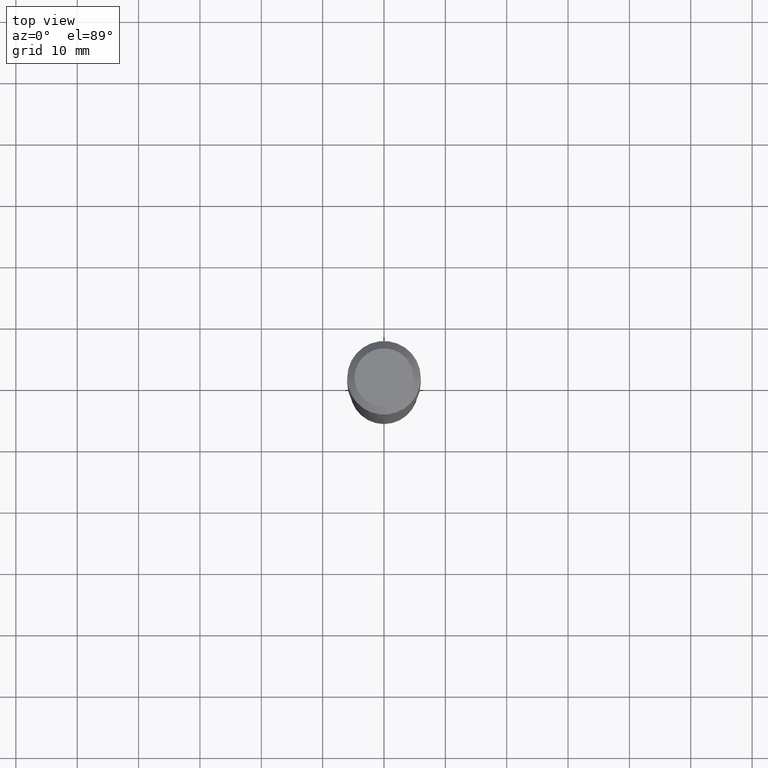
[diagram: clean part render]
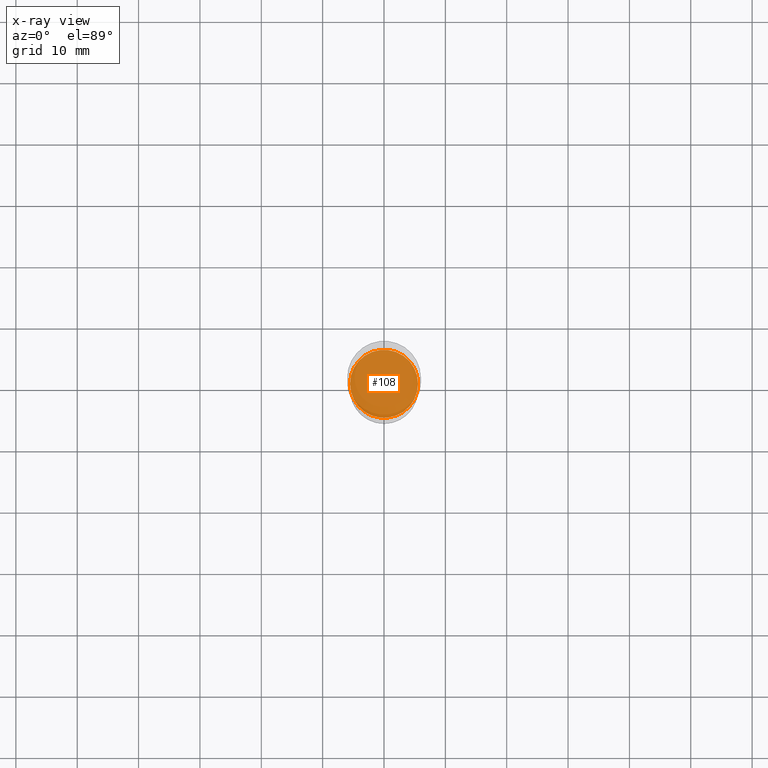
[diagram: x-ray — body ghosted, one internal face saturated and labeled with its STEP entity id]
A machine part, top view, then the same camera in x-ray: the body is ghosted and one INTERNAL B-rep face — a face not visible from any outside direction — is saturated and labeled: STEP entity #108.
In plain terms, the highlighted planar face has unit normal (-0, 0, 1).
Its self-contained STEP definition (entity closure, byte-faithful):
#16 = CARTESIAN_POINT ( 'NONE',  ( 5.596455362954686241E-29, -7.990255043942539745E-15, -2.288500000000000423 ) ) ;
#74 = CARTESIAN_POINT ( 'NONE',  ( 3.596165584200037068E-29, -1.085478385654307518E-14, -2.288500000000000423 ) ) ;
#104 = DIRECTION ( 'NONE',  ( 1.000000000000000000, -6.982962677686264344E-15, 0.000000000000000000 ) ) ;
#108 = ADVANCED_FACE ( 'NONE', ( #255 ), #402, .F. ) ;
#150 = EDGE_CURVE ( 'NONE', #432, #218, #321, .T. ) ;
#153 = DIRECTION ( 'NONE',  ( 1.000000000000000000, -6.982962677686265922E-15, 4.876176775795935793E-29 ) ) ;
#160 = CARTESIAN_POINT ( 'NONE',  ( -0.2182499999999999996, -6.436846295972010286E-15, -2.288500000000000423 ) ) ;
#174 = DIRECTION ( 'NONE',  ( -2.445468806185136597E-29, 3.491481338843145583E-15, 1.000000000000000000 ) ) ;
#189 = DIRECTION ( 'NONE',  ( -2.445468806185136597E-29, 3.491481338843145583E-15, 1.000000000000000000 ) ) ;
#213 = CIRCLE ( 'NONE', #330, 0.2182499999999999996 ) ;
#218 = VERTEX_POINT ( 'NONE', #160 ) ;
#229 = AXIS2_PLACEMENT_3D ( 'NONE', #74, #375, #153 ) ;
#255 = FACE_OUTER_BOUND ( 'NONE', #317, .T. ) ;
#262 = DIRECTION ( 'NONE',  ( 1.000000000000000000, -6.982962677686264344E-15, 0.000000000000000000 ) ) ;
#283 = ORIENTED_EDGE ( 'NONE', *, *, #150, .F. ) ;
#307 = AXIS2_PLACEMENT_3D ( 'NONE', #415, #189, #262 ) ;
#317 = EDGE_LOOP ( 'NONE', ( #283, #320 ) ) ;
#320 = ORIENTED_EDGE ( 'NONE', *, *, #369, .F. ) ;
#321 = CIRCLE ( 'NONE', #307, 0.2182499999999999996 ) ;
#330 = AXIS2_PLACEMENT_3D ( 'NONE', #16, #174, #104 ) ;
#336 = CARTESIAN_POINT ( 'NONE',  ( 0.2182499999999999996, -9.514286648347568370E-15, -2.288500000000000423 ) ) ;
#369 = EDGE_CURVE ( 'NONE', #218, #432, #213, .T. ) ;
#375 = DIRECTION ( 'NONE',  ( -2.438088387897960049E-29, 3.491481338843145188E-15, 1.000000000000000000 ) ) ;
#402 = PLANE ( 'NONE',  #229 ) ;
#415 = CARTESIAN_POINT ( 'NONE',  ( 5.596455362954686241E-29, -7.990255043942539745E-15, -2.288500000000000423 ) ) ;
#432 = VERTEX_POINT ( 'NONE', #336 ) ;